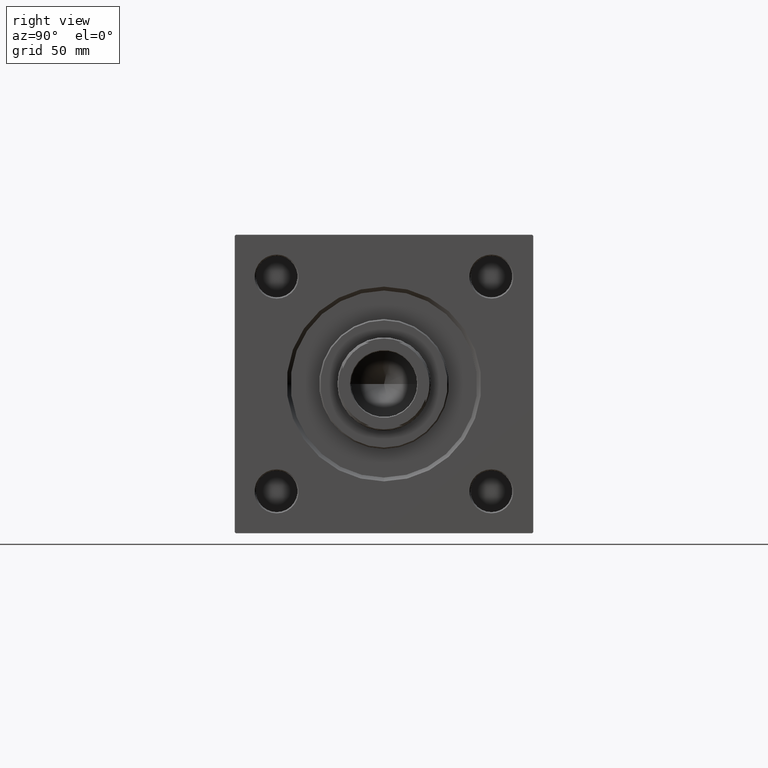
[diagram: clean part render]
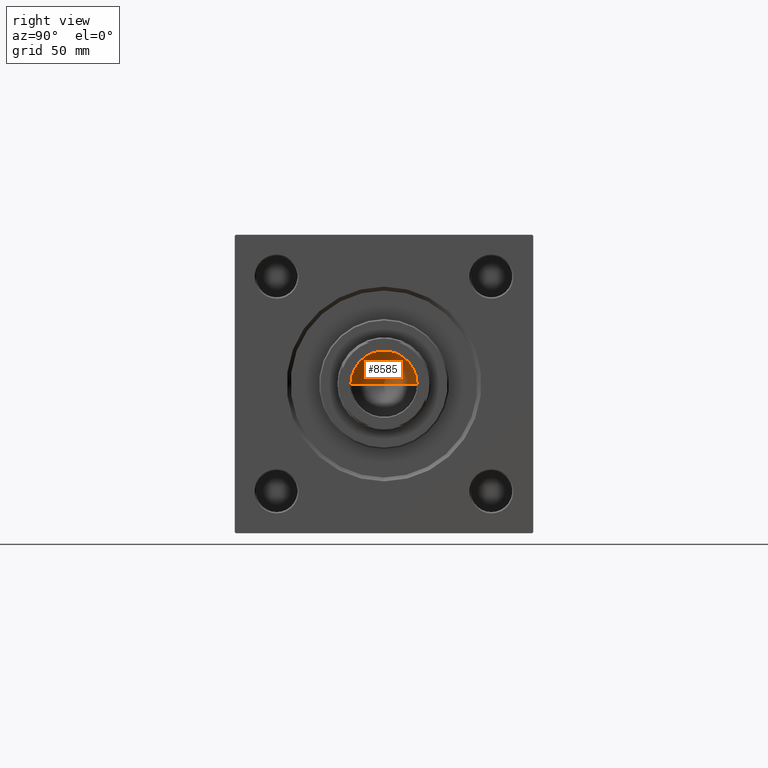
[diagram: same view with one face highlighted and labeled with its STEP entity id]
A machine part, right view. The second image highlights one B-rep face of the part: STEP entity #8585.
In plain terms, the highlighted conical surface has half-angle 59 deg.
Its self-contained STEP definition (entity closure, byte-faithful):
#2153 = DIRECTION ( 'NONE',  ( 1.000000000000000000, 0.000000000000000000, 0.000000000000000000 ) ) ;
#2251 = CARTESIAN_POINT ( 'NONE',  ( 12.74999999999998934, 0.000000000000000000, 121.0000000000000142 ) ) ;
#3358 = ORIENTED_EDGE ( 'NONE', *, *, #16359, .F. ) ;
#3520 = AXIS2_PLACEMENT_3D ( 'NONE', #31117, #23681, #23931 ) ;
#6827 = ORIENTED_EDGE ( 'NONE', *, *, #7660, .T. ) ;
#7660 = EDGE_CURVE ( 'NONE', #40697, #18144, #29582, .T. ) ;
#7961 = AXIS2_PLACEMENT_3D ( 'NONE', #26230, #37237, #2153 ) ;
#8585 = ADVANCED_FACE ( 'NONE', ( #27021 ), #46876, .F. ) ;
#10449 = LINE ( 'NONE', #2251, #27312 ) ;
#16135 = CIRCLE ( 'NONE', #7961, 12.74999999999998934 ) ;
#16359 = EDGE_CURVE ( 'NONE', #40697, #43597, #10449, .T. ) ;
#18144 = VERTEX_POINT ( 'NONE', #22020 ) ;
#22020 = CARTESIAN_POINT ( 'NONE',  ( -12.74999999999998934, 1.561424668912873928E-15, 121.0000000000000142 ) ) ;
#22306 = VECTOR ( 'NONE', #33670, 1000.000000000000000 ) ;
#23681 = DIRECTION ( 'NONE',  ( -0.000000000000000000, -0.000000000000000000, 1.000000000000000000 ) ) ;
#23931 = DIRECTION ( 'NONE',  ( 1.000000000000000000, 0.000000000000000000, 0.000000000000000000 ) ) ;
#24761 = EDGE_CURVE ( 'NONE', #18144, #43597, #16135, .T. ) ;
#26230 = CARTESIAN_POINT ( 'NONE',  ( 0.000000000000000000, 0.000000000000000000, 121.0000000000000142 ) ) ;
#27021 = FACE_OUTER_BOUND ( 'NONE', #29649, .T. ) ;
#27312 = VECTOR ( 'NONE', #29669, 1000.000000000000000 ) ;
#29582 = LINE ( 'NONE', #45198, #22306 ) ;
#29649 = EDGE_LOOP ( 'NONE', ( #3358, #6827, #37861 ) ) ;
#29669 = DIRECTION ( 'NONE',  ( 0.8571673007021117785, 0.000000000000000000, 0.5150380749100550437 ) ) ;
#31117 = CARTESIAN_POINT ( 'NONE',  ( 0.000000000000000000, 0.000000000000000000, 121.0000000000000142 ) ) ;
#33670 = DIRECTION ( 'NONE',  ( -0.8571673007021117785, 1.049727191138617956E-16, 0.5150380749100550437 ) ) ;
#37237 = DIRECTION ( 'NONE',  ( -0.000000000000000000, -0.000000000000000000, 1.000000000000000000 ) ) ;
#37861 = ORIENTED_EDGE ( 'NONE', *, *, #24761, .T. ) ;
#40697 = VERTEX_POINT ( 'NONE', #50478 ) ;
#43597 = VERTEX_POINT ( 'NONE', #47538 ) ;
#45198 = CARTESIAN_POINT ( 'NONE',  ( -12.74999999999998934, 1.561424668912873928E-15, 121.0000000000000142 ) ) ;
#46876 = CONICAL_SURFACE ( 'NONE', #3520, 12.74999999999998934, 1.029744258676653423 ) ;
#47538 = CARTESIAN_POINT ( 'NONE',  ( 12.74999999999998934, 0.000000000000000000, 121.0000000000000142 ) ) ;
#50478 = CARTESIAN_POINT ( 'NONE',  ( -1.410643066818227497E-14, 0.000000000000000000, 113.3390271073986071 ) ) ;